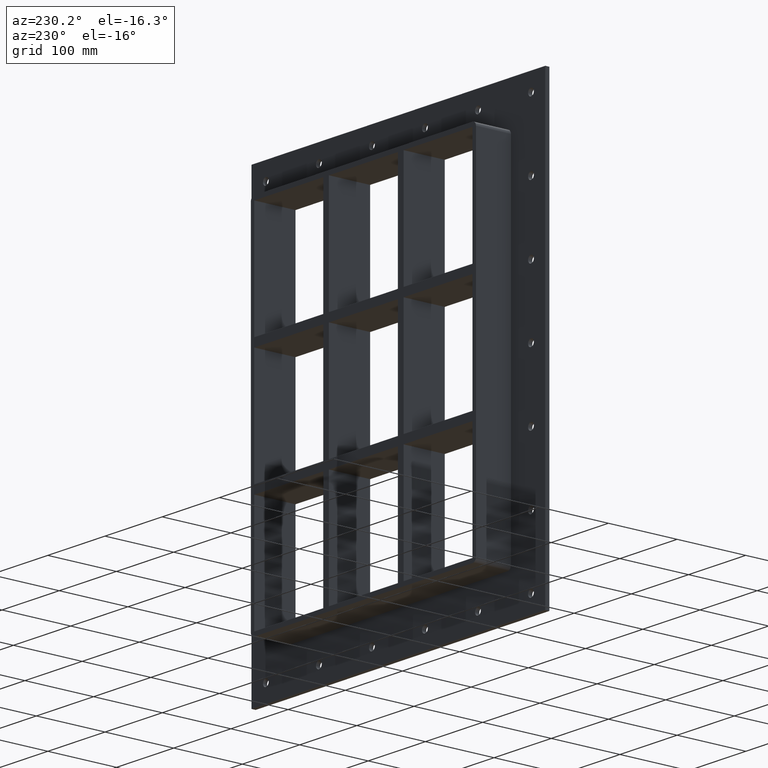
[diagram: clean part render]
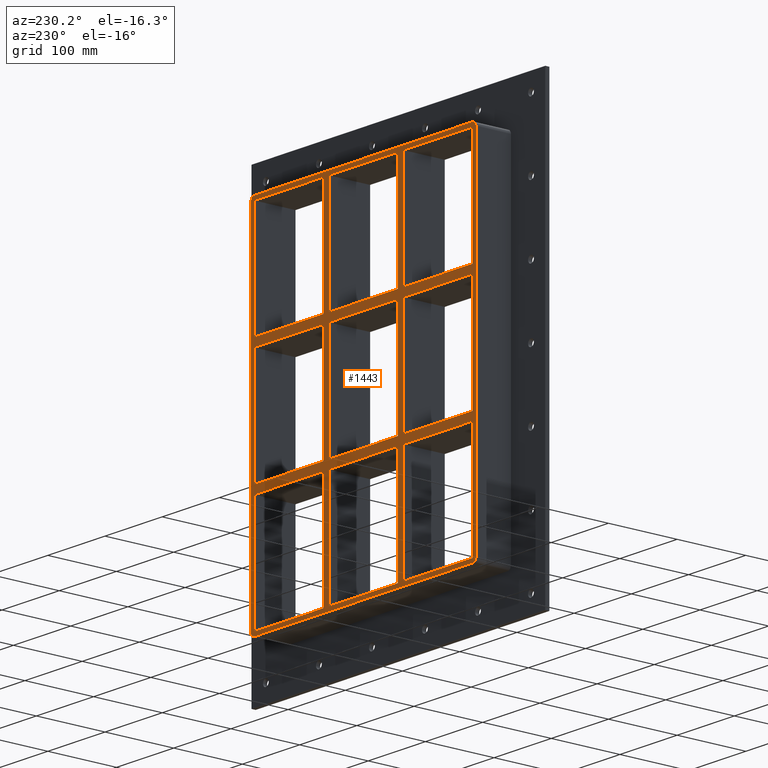
[diagram: same view with one face highlighted and labeled with its STEP entity id]
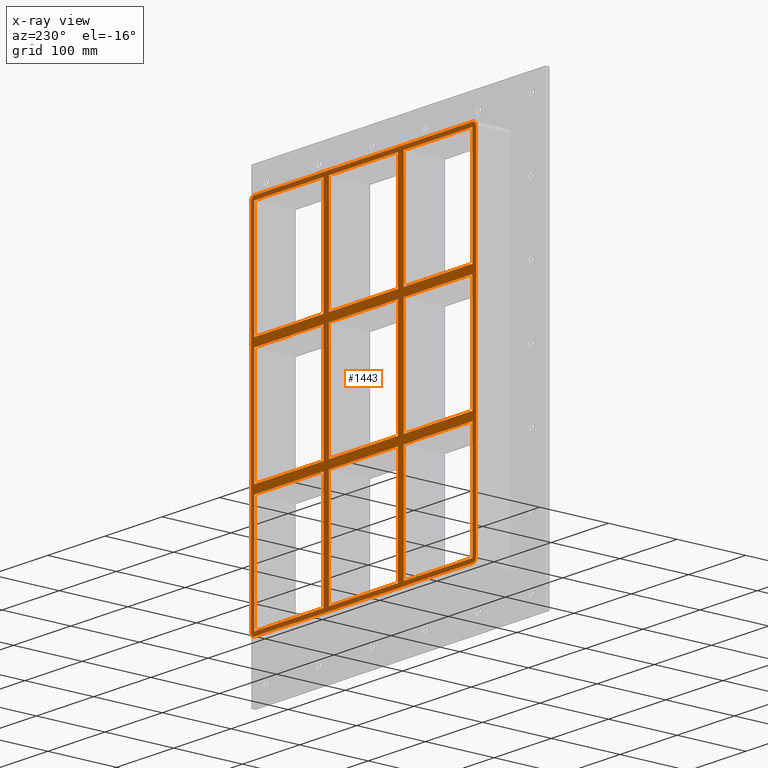
[diagram: x-ray of the same camera — body ghosted, the highlighted face saturated]
A machine part, auxiliary view. The second image highlights one B-rep face of the part: STEP entity #1443.
The next image is the same camera in x-ray: the body ghosted, the highlighted face saturated — about 0% of this face is hidden behind the body in this view.
In plain terms, the highlighted planar face has unit normal (0, 1, 0).
Its self-contained STEP definition (entity closure, byte-faithful):
#691=CARTESIAN_POINT('',(-70.250000000001421,57.0,79.749999999990635));
#692=VERTEX_POINT('',#691);
#707=CARTESIAN_POINT('',(-190.74999999999977,57.0,79.749999999990536));
#708=VERTEX_POINT('',#707);
#715=CARTESIAN_POINT('',(-70.250000000001421,57.0,79.749999999990607));
#716=DIRECTION('',(-1.0,0.0,0.0));
#717=VECTOR('',#716,120.49999999999835);
#718=LINE('',#715,#717);
#719=EDGE_CURVE('',#692,#708,#718,.T.);
#729=CARTESIAN_POINT('',(70.250000000003638,57.0,79.749999999990692));
#730=VERTEX_POINT('',#729);
#739=CARTESIAN_POINT('',(190.74999999999815,57.0,79.749999999990777));
#740=VERTEX_POINT('',#739);
#741=CARTESIAN_POINT('',(190.74999999999818,57.0,79.749999999990777));
#742=DIRECTION('',(-1.0,0.0,0.0));
#743=VECTOR('',#742,120.49999999999454);
#744=LINE('',#741,#743);
#745=EDGE_CURVE('',#740,#730,#744,.T.);
#771=CARTESIAN_POINT('',(60.249999999998579,57.0,79.749999999990692));
#772=VERTEX_POINT('',#771);
#787=CARTESIAN_POINT('',(-60.249999999996362,57.0,79.749999999990592));
#788=VERTEX_POINT('',#787);
#795=CARTESIAN_POINT('',(60.249999999998579,57.0,79.749999999990692));
#796=DIRECTION('',(-1.0,0.0,0.0));
#797=VECTOR('',#796,120.49999999999494);
#798=LINE('',#795,#797);
#799=EDGE_CURVE('',#772,#788,#798,.T.);
#809=CARTESIAN_POINT('',(-70.250000000001421,57.0,91.750000000000114));
#810=VERTEX_POINT('',#809);
#819=CARTESIAN_POINT('',(-190.74999999999977,57.0,91.750000000000085));
#820=VERTEX_POINT('',#819);
#821=CARTESIAN_POINT('',(-190.74999999999977,57.0,91.750000000000085));
#822=DIRECTION('',(1.0,0.0,0.0));
#823=VECTOR('',#822,120.49999999999838);
#824=LINE('',#821,#823);
#825=EDGE_CURVE('',#820,#810,#824,.T.);
#851=CARTESIAN_POINT('',(70.250000000003638,57.0,91.750000000000085));
#852=VERTEX_POINT('',#851);
#867=CARTESIAN_POINT('',(190.74999999999986,57.0,91.750000000000085));
#868=VERTEX_POINT('',#867);
#875=CARTESIAN_POINT('',(70.250000000003638,57.0,91.750000000000085));
#876=DIRECTION('',(1.0,0.0,0.0));
#877=VECTOR('',#876,120.49999999999625);
#878=LINE('',#875,#877);
#879=EDGE_CURVE('',#852,#868,#878,.T.);
#889=CARTESIAN_POINT('',(60.2499999999986,57.0,91.750000000000085));
#890=VERTEX_POINT('',#889);
#899=CARTESIAN_POINT('',(-60.249999999996362,57.0,91.750000000000085));
#900=VERTEX_POINT('',#899);
#901=CARTESIAN_POINT('',(-60.249999999996362,57.0,91.750000000000085));
#902=DIRECTION('',(1.0,0.0,0.0));
#903=VECTOR('',#902,120.49999999999497);
#904=LINE('',#901,#903);
#905=EDGE_CURVE('',#900,#890,#904,.T.);
#930=CARTESIAN_POINT('',(-190.75000000000006,57.0,251.25));
#931=VERTEX_POINT('',#930);
#932=CARTESIAN_POINT('',(-190.75000000000003,57.0,251.25));
#933=DIRECTION('',(0.0,0.0,-1.0));
#934=VECTOR('',#933,159.49999999999991);
#935=LINE('',#932,#934);
#936=EDGE_CURVE('',#931,#820,#935,.T.);
#961=CARTESIAN_POINT('',(190.74999999999986,57.0,-79.749999999999943));
#962=VERTEX_POINT('',#961);
#963=CARTESIAN_POINT('',(190.75,57.0,-79.749999999999943));
#964=DIRECTION('',(0.0,0.0,1.0));
#965=VECTOR('',#964,159.49999999999073);
#966=LINE('',#963,#965);
#967=EDGE_CURVE('',#962,#740,#966,.T.);
#1000=CARTESIAN_POINT('',(190.75,57.0,251.25));
#1001=VERTEX_POINT('',#1000);
#1008=CARTESIAN_POINT('',(190.75,57.0,91.750000000000085));
#1009=DIRECTION('',(0.0,0.0,1.0));
#1010=VECTOR('',#1009,159.49999999999991);
#1011=LINE('',#1008,#1010);
#1012=EDGE_CURVE('',#868,#1001,#1011,.T.);
#1031=CARTESIAN_POINT('',(60.249999999998565,57.0,251.25));
#1032=VERTEX_POINT('',#1031);
#1039=CARTESIAN_POINT('',(60.249999999998586,57.0,91.750000000000114));
#1040=DIRECTION('',(0.0,0.0,1.0));
#1041=VECTOR('',#1040,159.49999999999989);
#1042=LINE('',#1039,#1041);
#1043=EDGE_CURVE('',#890,#1032,#1042,.T.);
#1054=CARTESIAN_POINT('',(70.250000000003638,57.0,251.25));
#1055=VERTEX_POINT('',#1054);
#1056=CARTESIAN_POINT('',(70.250000000003638,57.0,251.25));
#1057=DIRECTION('',(0.0,0.0,-1.0));
#1058=VECTOR('',#1057,159.49999999999991);
#1059=LINE('',#1056,#1058);
#1060=EDGE_CURVE('',#1055,#852,#1059,.T.);
#1093=CARTESIAN_POINT('',(-70.25000000000145,57.0,251.25));
#1094=VERTEX_POINT('',#1093);
#1101=CARTESIAN_POINT('',(-70.250000000001407,57.0,91.750000000000114));
#1102=DIRECTION('',(0.0,0.0,1.0));
#1103=VECTOR('',#1102,159.49999999999989);
#1104=LINE('',#1101,#1103);
#1105=EDGE_CURVE('',#810,#1094,#1104,.T.);
#1116=CARTESIAN_POINT('',(-70.250000000001393,57.0,-79.749999999999943));
#1117=VERTEX_POINT('',#1116);
#1118=CARTESIAN_POINT('',(-70.250000000001393,57.0,-79.749999999999943));
#1119=DIRECTION('',(0.0,0.0,1.0));
#1120=VECTOR('',#1119,159.49999999999056);
#1121=LINE('',#1118,#1120);
#1122=EDGE_CURVE('',#1117,#692,#1121,.T.);
#1147=CARTESIAN_POINT('',(-60.249999999996362,57.0,251.25));
#1148=VERTEX_POINT('',#1147);
#1149=CARTESIAN_POINT('',(-60.249999999996362,57.0,251.25));
#1150=DIRECTION('',(0.0,0.0,-1.0));
#1151=VECTOR('',#1150,159.49999999999991);
#1152=LINE('',#1149,#1151);
#1153=EDGE_CURVE('',#1148,#900,#1152,.T.);
#1172=CARTESIAN_POINT('',(0.0,57.0,0.0));
#1173=DIRECTION('',(0.0,1.0,0.0));
#1174=DIRECTION('',(0.0,0.0,1.0));
#1175=AXIS2_PLACEMENT_3D('',#1172,#1173,#1174);
#1176=PLANE('',#1175);
#1177=CARTESIAN_POINT('',(190.75000000000003,57.0,-257.25));
#1178=VERTEX_POINT('',#1177);
#1179=CARTESIAN_POINT('',(196.75000000000006,57.0,-251.25));
#1180=VERTEX_POINT('',#1179);
#1181=CARTESIAN_POINT('',(190.75000000000003,57.0,-251.25));
#1182=DIRECTION('',(0.0,-1.0,0.0));
#1183=DIRECTION('',(0.707106781186548,0.0,-0.707106781186548));
#1184=AXIS2_PLACEMENT_3D('',#1181,#1182,#1183);
#1185=CIRCLE('',#1184,6.000000000000002);
#1186=EDGE_CURVE('',#1178,#1180,#1185,.T.);
#1187=ORIENTED_EDGE('',*,*,#1186,.F.);
#1188=CARTESIAN_POINT('',(-190.75000000000003,57.0,-257.25));
#1189=VERTEX_POINT('',#1188);
#1190=CARTESIAN_POINT('',(190.75000000000006,57.0,-257.25));
#1191=DIRECTION('',(-1.0,0.0,0.0));
#1192=VECTOR('',#1191,381.50000000000006);
#1193=LINE('',#1190,#1192);
#1194=EDGE_CURVE('',#1178,#1189,#1193,.T.);
#1195=ORIENTED_EDGE('',*,*,#1194,.T.);
#1196=CARTESIAN_POINT('',(-196.75000000000006,57.0,-251.25));
#1197=VERTEX_POINT('',#1196);
#1198=CARTESIAN_POINT('',(-190.75000000000003,57.0,-251.25));
#1199=DIRECTION('',(0.0,-1.0,0.0));
#1200=DIRECTION('',(-0.707106781186548,0.0,-0.707106781186548));
#1201=AXIS2_PLACEMENT_3D('',#1198,#1199,#1200);
#1202=CIRCLE('',#1201,6.000000000000002);
#1203=EDGE_CURVE('',#1197,#1189,#1202,.T.);
#1204=ORIENTED_EDGE('',*,*,#1203,.F.);
#1205=CARTESIAN_POINT('',(-196.75000000000006,57.0,251.25));
#1206=VERTEX_POINT('',#1205);
#1207=CARTESIAN_POINT('',(-196.75000000000006,57.0,-251.25));
#1208=DIRECTION('',(0.0,0.0,1.0));
#1209=VECTOR('',#1208,502.5);
#1210=LINE('',#1207,#1209);
#1211=EDGE_CURVE('',#1197,#1206,#1210,.T.);
#1212=ORIENTED_EDGE('',*,*,#1211,.T.);
#1213=CARTESIAN_POINT('',(-190.75000000000003,57.0,257.25));
#1214=VERTEX_POINT('',#1213);
#1215=CARTESIAN_POINT('',(-190.75000000000003,57.0,251.25));
#1216=DIRECTION('',(0.0,-1.0,0.0));
#1217=DIRECTION('',(-0.707106781186548,0.0,0.707106781186548));
#1218=AXIS2_PLACEMENT_3D('',#1215,#1216,#1217);
#1219=CIRCLE('',#1218,6.000000000000002);
#1220=EDGE_CURVE('',#1214,#1206,#1219,.T.);
#1221=ORIENTED_EDGE('',*,*,#1220,.F.);
#1222=CARTESIAN_POINT('',(190.75000000000003,57.0,257.25));
#1223=VERTEX_POINT('',#1222);
#1224=CARTESIAN_POINT('',(-190.75000000000006,57.0,257.25));
#1225=DIRECTION('',(1.0,0.0,0.0));
#1226=VECTOR('',#1225,381.50000000000006);
#1227=LINE('',#1224,#1226);
#1228=EDGE_CURVE('',#1214,#1223,#1227,.T.);
#1229=ORIENTED_EDGE('',*,*,#1228,.T.);
#1230=CARTESIAN_POINT('',(196.75000000000006,57.0,251.25));
#1231=VERTEX_POINT('',#1230);
#1232=CARTESIAN_POINT('',(190.75000000000003,57.0,251.25));
#1233=DIRECTION('',(0.0,-1.0,0.0));
#1234=DIRECTION('',(0.707106781186548,0.0,0.707106781186548));
#1235=AXIS2_PLACEMENT_3D('',#1232,#1233,#1234);
#1236=CIRCLE('',#1235,6.000000000000002);
#1237=EDGE_CURVE('',#1231,#1223,#1236,.T.);
#1238=ORIENTED_EDGE('',*,*,#1237,.F.);
#1239=CARTESIAN_POINT('',(196.75000000000006,57.0,251.25));
#1240=DIRECTION('',(0.0,0.0,-1.0));
#1241=VECTOR('',#1240,502.5);
#1242=LINE('',#1239,#1241);
#1243=EDGE_CURVE('',#1231,#1180,#1242,.T.);
#1244=ORIENTED_EDGE('',*,*,#1243,.T.);
#1245=EDGE_LOOP('',(#1187,#1195,#1204,#1212,#1221,#1229,#1238,#1244));
#1246=FACE_OUTER_BOUND('',#1245,.T.);
#1247=CARTESIAN_POINT('',(-190.74999999999977,57.0,-79.749999999999943));
#1248=VERTEX_POINT('',#1247);
#1249=CARTESIAN_POINT('',(-190.75000000000003,57.0,79.749999999990536));
#1250=DIRECTION('',(0.0,0.0,-1.0));
#1251=VECTOR('',#1250,159.49999999999048);
#1252=LINE('',#1249,#1251);
#1253=EDGE_CURVE('',#708,#1248,#1252,.T.);
#1254=ORIENTED_EDGE('',*,*,#1253,.T.);
#1255=CARTESIAN_POINT('',(-190.74999999999977,57.0,-79.749999999999943));
#1256=DIRECTION('',(1.0,0.0,0.0));
#1257=VECTOR('',#1256,120.49999999999839);
#1258=LINE('',#1255,#1257);
#1259=EDGE_CURVE('',#1248,#1117,#1258,.T.);
#1260=ORIENTED_EDGE('',*,*,#1259,.T.);
#1261=ORIENTED_EDGE('',*,*,#1122,.T.);
#1262=ORIENTED_EDGE('',*,*,#719,.T.);
#1263=EDGE_LOOP('',(#1254,#1260,#1261,#1262));
#1264=FACE_BOUND('',#1263,.T.);
#1265=ORIENTED_EDGE('',*,*,#1012,.T.);
#1266=CARTESIAN_POINT('',(190.75,57.0,251.25));
#1267=DIRECTION('',(-1.0,0.0,0.0));
#1268=VECTOR('',#1267,120.49999999999635);
#1269=LINE('',#1266,#1268);
#1270=EDGE_CURVE('',#1001,#1055,#1269,.T.);
#1271=ORIENTED_EDGE('',*,*,#1270,.T.);
#1272=ORIENTED_EDGE('',*,*,#1060,.T.);
#1273=ORIENTED_EDGE('',*,*,#879,.T.);
#1274=EDGE_LOOP('',(#1265,#1271,#1272,#1273));
#1275=FACE_BOUND('',#1274,.T.);
#1276=ORIENTED_EDGE('',*,*,#1043,.T.);
#1277=CARTESIAN_POINT('',(60.249999999998565,57.0,251.25));
#1278=DIRECTION('',(-1.0,0.0,0.0));
#1279=VECTOR('',#1278,120.49999999999493);
#1280=LINE('',#1277,#1279);
#1281=EDGE_CURVE('',#1032,#1148,#1280,.T.);
#1282=ORIENTED_EDGE('',*,*,#1281,.T.);
#1283=ORIENTED_EDGE('',*,*,#1153,.T.);
#1284=ORIENTED_EDGE('',*,*,#905,.T.);
#1285=EDGE_LOOP('',(#1276,#1282,#1283,#1284));
#1286=FACE_BOUND('',#1285,.T.);
#1287=ORIENTED_EDGE('',*,*,#745,.T.);
#1288=CARTESIAN_POINT('',(70.250000000003638,57.0,-79.749999999999943));
#1289=VERTEX_POINT('',#1288);
#1290=CARTESIAN_POINT('',(70.250000000003638,57.0,79.749999999990706));
#1291=DIRECTION('',(0.0,0.0,-1.0));
#1292=VECTOR('',#1291,159.49999999999065);
#1293=LINE('',#1290,#1292);
#1294=EDGE_CURVE('',#730,#1289,#1293,.T.);
#1295=ORIENTED_EDGE('',*,*,#1294,.T.);
#1296=CARTESIAN_POINT('',(70.250000000003638,57.0,-79.749999999999943));
#1297=DIRECTION('',(1.0,0.0,0.0));
#1298=VECTOR('',#1297,120.49999999999625);
#1299=LINE('',#1296,#1298);
#1300=EDGE_CURVE('',#1289,#962,#1299,.T.);
#1301=ORIENTED_EDGE('',*,*,#1300,.T.);
#1302=ORIENTED_EDGE('',*,*,#967,.T.);
#1303=EDGE_LOOP('',(#1287,#1295,#1301,#1302));
#1304=FACE_BOUND('',#1303,.T.);
#1305=ORIENTED_EDGE('',*,*,#799,.T.);
#1306=CARTESIAN_POINT('',(-60.249999999996362,57.0,-79.749999999999943));
#1307=VERTEX_POINT('',#1306);
#1308=CARTESIAN_POINT('',(-60.249999999996362,57.0,79.749999999990592));
#1309=DIRECTION('',(0.0,0.0,-1.0));
#1310=VECTOR('',#1309,159.49999999999054);
#1311=LINE('',#1308,#1310);
#1312=EDGE_CURVE('',#788,#1307,#1311,.T.);
#1313=ORIENTED_EDGE('',*,*,#1312,.T.);
#1314=CARTESIAN_POINT('',(60.249999999998607,57.0,-79.749999999999943));
#1315=VERTEX_POINT('',#1314);
#1316=CARTESIAN_POINT('',(-60.249999999996362,57.0,-79.749999999999943));
#1317=DIRECTION('',(1.0,0.0,0.0));
#1318=VECTOR('',#1317,120.49999999999497);
#1319=LINE('',#1316,#1318);
#1320=EDGE_CURVE('',#1307,#1315,#1319,.T.);
#1321=ORIENTED_EDGE('',*,*,#1320,.T.);
#1322=CARTESIAN_POINT('',(60.249999999998614,57.0,-79.749999999999943));
#1323=DIRECTION('',(0.0,0.0,1.0));
#1324=VECTOR('',#1323,159.49999999999062);
#1325=LINE('',#1322,#1324);
#1326=EDGE_CURVE('',#1315,#772,#1325,.T.);
#1327=ORIENTED_EDGE('',*,*,#1326,.T.);
#1328=EDGE_LOOP('',(#1305,#1313,#1321,#1327));
#1329=FACE_BOUND('',#1328,.T.);
#1330=CARTESIAN_POINT('',(-190.74999999999977,57.0,-91.750000000009493));
#1331=VERTEX_POINT('',#1330);
#1332=CARTESIAN_POINT('',(-190.75000000000006,57.0,-251.25));
#1333=VERTEX_POINT('',#1332);
#1334=CARTESIAN_POINT('',(-190.75000000000003,57.0,-91.750000000009493));
#1335=DIRECTION('',(0.0,0.0,-1.0));
#1336=VECTOR('',#1335,159.49999999999051);
#1337=LINE('',#1334,#1336);
#1338=EDGE_CURVE('',#1331,#1333,#1337,.T.);
#1339=ORIENTED_EDGE('',*,*,#1338,.T.);
#1340=CARTESIAN_POINT('',(-70.250000000001364,57.0,-251.25));
#1341=VERTEX_POINT('',#1340);
#1342=CARTESIAN_POINT('',(-190.75000000000006,57.0,-251.25));
#1343=DIRECTION('',(1.0,0.0,0.0));
#1344=VECTOR('',#1343,120.49999999999869);
#1345=LINE('',#1342,#1344);
#1346=EDGE_CURVE('',#1333,#1341,#1345,.T.);
#1347=ORIENTED_EDGE('',*,*,#1346,.T.);
#1348=CARTESIAN_POINT('',(-70.250000000001407,57.0,-91.750000000009422));
#1349=VERTEX_POINT('',#1348);
#1350=CARTESIAN_POINT('',(-70.250000000001364,57.0,-251.25));
#1351=DIRECTION('',(0.0,0.0,1.0));
#1352=VECTOR('',#1351,159.49999999999056);
#1353=LINE('',#1350,#1352);
#1354=EDGE_CURVE('',#1341,#1349,#1353,.T.);
#1355=ORIENTED_EDGE('',*,*,#1354,.T.);
#1356=CARTESIAN_POINT('',(-70.250000000001421,57.0,-91.750000000009408));
#1357=DIRECTION('',(-1.0,0.0,0.0));
#1358=VECTOR('',#1357,120.49999999999835);
#1359=LINE('',#1356,#1358);
#1360=EDGE_CURVE('',#1349,#1331,#1359,.T.);
#1361=ORIENTED_EDGE('',*,*,#1360,.T.);
#1362=EDGE_LOOP('',(#1339,#1347,#1355,#1361));
#1363=FACE_BOUND('',#1362,.T.);
#1364=CARTESIAN_POINT('',(60.249999999998636,57.0,-251.25));
#1365=VERTEX_POINT('',#1364);
#1366=CARTESIAN_POINT('',(60.249999999998607,57.0,-91.750000000009337));
#1367=VERTEX_POINT('',#1366);
#1368=CARTESIAN_POINT('',(60.249999999998636,57.0,-251.25));
#1369=DIRECTION('',(0.0,0.0,1.0));
#1370=VECTOR('',#1369,159.49999999999068);
#1371=LINE('',#1368,#1370);
#1372=EDGE_CURVE('',#1365,#1367,#1371,.T.);
#1373=ORIENTED_EDGE('',*,*,#1372,.T.);
#1374=CARTESIAN_POINT('',(-60.249999999996362,57.0,-91.750000000009408));
#1375=VERTEX_POINT('',#1374);
#1376=CARTESIAN_POINT('',(60.249999999998607,57.0,-91.750000000009322));
#1377=DIRECTION('',(-1.0,0.0,0.0));
#1378=VECTOR('',#1377,120.49999999999497);
#1379=LINE('',#1376,#1378);
#1380=EDGE_CURVE('',#1367,#1375,#1379,.T.);
#1381=ORIENTED_EDGE('',*,*,#1380,.T.);
#1382=CARTESIAN_POINT('',(-60.249999999996362,57.0,-251.24999999998423));
#1383=VERTEX_POINT('',#1382);
#1384=CARTESIAN_POINT('',(-60.249999999996362,57.0,-91.750000000009436));
#1385=DIRECTION('',(0.0,0.0,-1.0));
#1386=VECTOR('',#1385,159.49999999997476);
#1387=LINE('',#1384,#1386);
#1388=EDGE_CURVE('',#1375,#1383,#1387,.T.);
#1389=ORIENTED_EDGE('',*,*,#1388,.T.);
#1390=CARTESIAN_POINT('',(-60.249999999996362,57.0,-251.25));
#1391=DIRECTION('',(1.0,0.0,0.0));
#1392=VECTOR('',#1391,120.499999999995);
#1393=LINE('',#1390,#1392);
#1394=EDGE_CURVE('',#1383,#1365,#1393,.T.);
#1395=ORIENTED_EDGE('',*,*,#1394,.T.);
#1396=EDGE_LOOP('',(#1373,#1381,#1389,#1395));
#1397=FACE_BOUND('',#1396,.T.);
#1398=ORIENTED_EDGE('',*,*,#825,.T.);
#1399=ORIENTED_EDGE('',*,*,#1105,.T.);
#1400=CARTESIAN_POINT('',(-70.25000000000145,57.0,251.25));
#1401=DIRECTION('',(-1.0,0.0,0.0));
#1402=VECTOR('',#1401,120.49999999999861);
#1403=LINE('',#1400,#1402);
#1404=EDGE_CURVE('',#1094,#931,#1403,.T.);
#1405=ORIENTED_EDGE('',*,*,#1404,.T.);
#1406=ORIENTED_EDGE('',*,*,#936,.T.);
#1407=EDGE_LOOP('',(#1398,#1399,#1405,#1406));
#1408=FACE_BOUND('',#1407,.T.);
#1409=CARTESIAN_POINT('',(70.250000000003638,57.0,-251.24999999998423));
#1410=VERTEX_POINT('',#1409);
#1411=CARTESIAN_POINT('',(190.75,57.0,-251.25));
#1412=VERTEX_POINT('',#1411);
#1413=CARTESIAN_POINT('',(70.250000000003652,57.0,-251.25));
#1414=DIRECTION('',(1.0,0.0,0.0));
#1415=VECTOR('',#1414,120.49999999999635);
#1416=LINE('',#1413,#1415);
#1417=EDGE_CURVE('',#1410,#1412,#1416,.T.);
#1418=ORIENTED_EDGE('',*,*,#1417,.T.);
#1419=CARTESIAN_POINT('',(190.74999999999815,57.0,-91.750000000009237));
#1420=VERTEX_POINT('',#1419);
#1421=CARTESIAN_POINT('',(190.75,57.0,-251.25));
#1422=DIRECTION('',(0.0,0.0,1.0));
#1423=VECTOR('',#1422,159.49999999999076);
#1424=LINE('',#1421,#1423);
#1425=EDGE_CURVE('',#1412,#1420,#1424,.T.);
#1426=ORIENTED_EDGE('',*,*,#1425,.T.);
#1427=CARTESIAN_POINT('',(70.250000000003638,57.0,-91.75000000000928));
#1428=VERTEX_POINT('',#1427);
#1429=CARTESIAN_POINT('',(190.74999999999818,57.0,-91.750000000009237));
#1430=DIRECTION('',(-1.0,0.0,0.0));
#1431=VECTOR('',#1430,120.49999999999454);
#1432=LINE('',#1429,#1431);
#1433=EDGE_CURVE('',#1420,#1428,#1432,.T.);
#1434=ORIENTED_EDGE('',*,*,#1433,.T.);
#1435=CARTESIAN_POINT('',(70.250000000003638,57.0,-91.750000000009265));
#1436=DIRECTION('',(0.0,0.0,-1.0));
#1437=VECTOR('',#1436,159.49999999997493);
#1438=LINE('',#1435,#1437);
#1439=EDGE_CURVE('',#1428,#1410,#1438,.T.);
#1440=ORIENTED_EDGE('',*,*,#1439,.T.);
#1441=EDGE_LOOP('',(#1418,#1426,#1434,#1440));
#1442=FACE_BOUND('',#1441,.T.);
#1443=ADVANCED_FACE('',(#1246,#1264,#1275,#1286,#1304,#1329,#1363,#1397,#1408,#1442),#1176,.T.);